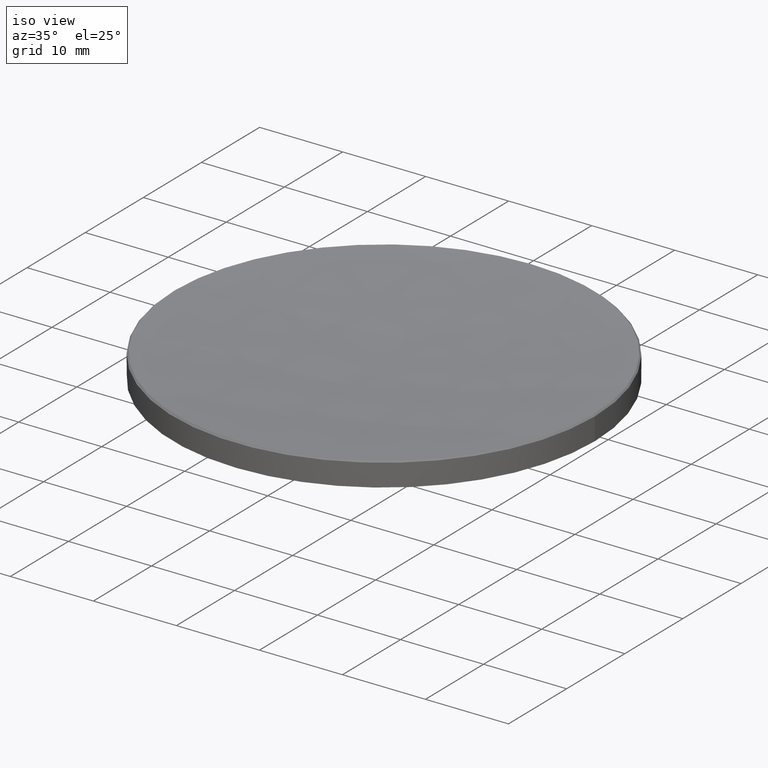
[diagram: clean part render]
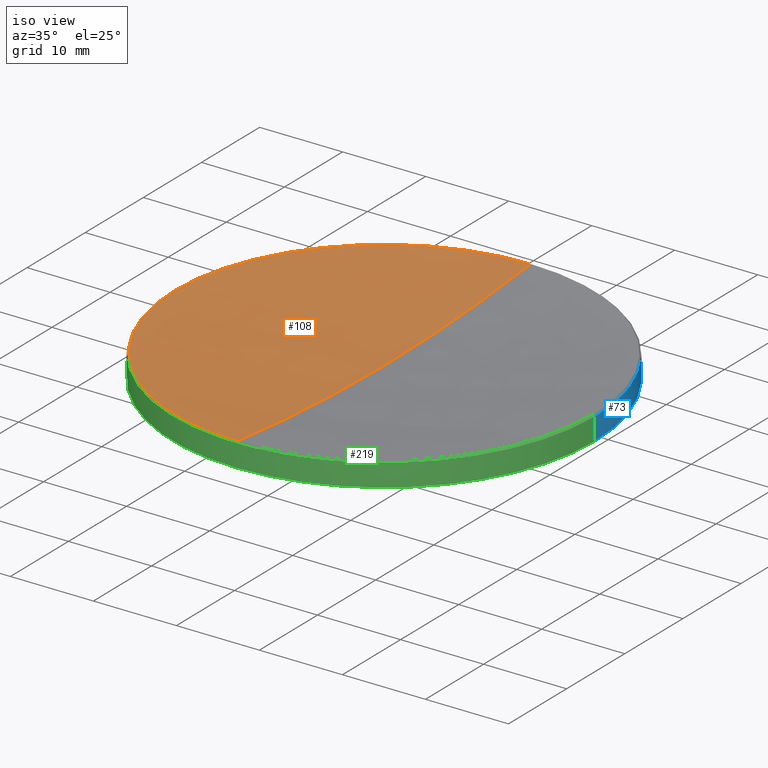
[diagram: same view with three faces highlighted in distinct colors, each labeled with its STEP entity id]
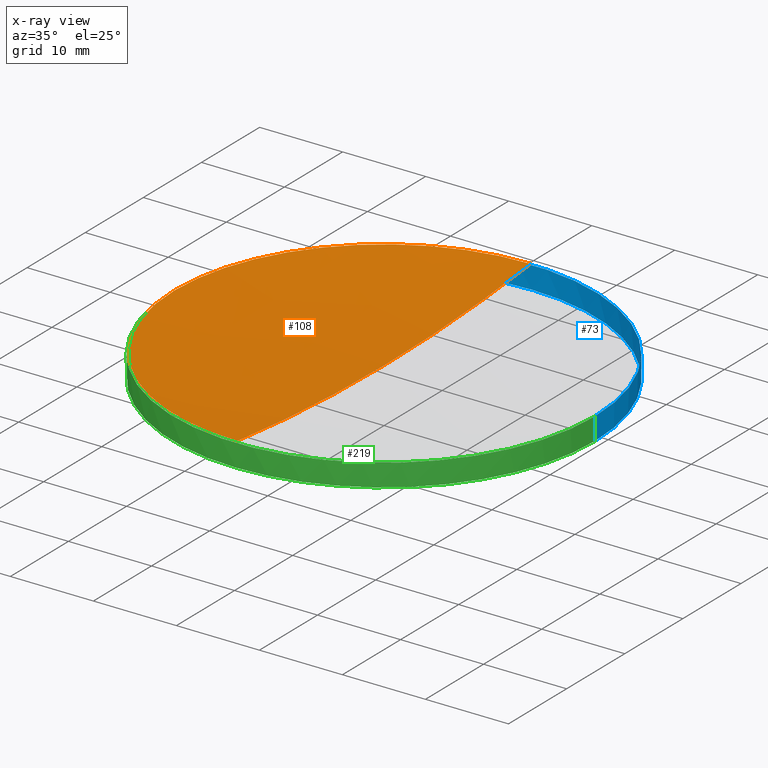
[diagram: x-ray of the same camera — body ghosted, the three highlighted faces saturated]
A machine part, iso view with three faces highlighted in distinct colors.
The next image is the same camera in x-ray (body ghosted, the three faces saturated) — at least one of them is partly hidden behind the body in this view.
Their STEP definitions:

[orange] entity #108 — the highlighted spherical surface has radius 224.67 mm.
#5 = CARTESIAN_POINT ( 'NONE',  ( 0.000000000000000000, 1.375706981822179092E-14, 14.45958786863357837 ) ) ;
#13 = CIRCLE ( 'NONE', #248, 25.22036627463847935 ) ;
#18 = DIRECTION ( 'NONE',  ( 1.000000000000000000, 0.000000000000000000, 0.000000000000000000 ) ) ;
#28 = FACE_OUTER_BOUND ( 'NONE', #196, .T. ) ;
#35 = VERTEX_POINT ( 'NONE', #274 ) ;
#40 = CARTESIAN_POINT ( 'NONE',  ( 0.000000000000000000, 0.000000000000000000, 15.87963372536149720 ) ) ;
#43 = VERTEX_POINT ( 'NONE', #173 ) ;
#44 = CIRCLE ( 'NONE', #210, 224.6699999999999875 ) ;
#48 = CARTESIAN_POINT ( 'NONE',  ( 0.000000000000000000, 0.000000000000000000, 239.1295878686335641 ) ) ;
#52 = AXIS2_PLACEMENT_3D ( 'NONE', #71, #202, #157 ) ;
#54 = DIRECTION ( 'NONE',  ( 1.000000000000000000, 0.000000000000000000, 0.000000000000000000 ) ) ;
#62 = VERTEX_POINT ( 'NONE', #151 ) ;
#64 = EDGE_CURVE ( 'NONE', #148, #35, #44, .T. ) ;
#71 = CARTESIAN_POINT ( 'NONE',  ( 0.000000000000000000, 0.000000000000000000, 239.1295878686335641 ) ) ;
#75 = CARTESIAN_POINT ( 'NONE',  ( 0.000000000000000000, 0.000000000000000000, 15.87963372536149720 ) ) ;
#80 = ORIENTED_EDGE ( 'NONE', *, *, #261, .T. ) ;
#90 = CARTESIAN_POINT ( 'NONE',  ( 0.000000000000000000, 0.000000000000000000, 239.1295878686335641 ) ) ;
#95 = AXIS2_PLACEMENT_3D ( 'NONE', #90, #249, #115 ) ;
#106 = ORIENTED_EDGE ( 'NONE', *, *, #246, .T. ) ;
#108 = ADVANCED_FACE ( 'NONE', ( #28 ), #199, .F. ) ;
#115 = DIRECTION ( 'NONE',  ( 0.000000000000000000, 1.000000000000000000, 0.000000000000000000 ) ) ;
#120 = CIRCLE ( 'NONE', #209, 25.22036627463847935 ) ;
#126 = DIRECTION ( 'NONE',  ( -0.000000000000000000, -0.000000000000000000, 1.000000000000000000 ) ) ;
#148 = VERTEX_POINT ( 'NONE', #5 ) ;
#151 = CARTESIAN_POINT ( 'NONE',  ( -25.22036627463847935, 0.000000000000000000, 15.87963372536149720 ) ) ;
#157 = DIRECTION ( 'NONE',  ( -1.224646799147353207E-16, -1.000000000000000000, 0.000000000000000000 ) ) ;
#173 = CARTESIAN_POINT ( 'NONE',  ( -3.088604083155972347E-15, -25.22036627463835501, 15.87963372536149720 ) ) ;
#176 = DIRECTION ( 'NONE',  ( 0.000000000000000000, 0.000000000000000000, -1.000000000000000000 ) ) ;
#195 = EDGE_CURVE ( 'NONE', #148, #43, #263, .T. ) ;
#196 = EDGE_LOOP ( 'NONE', ( #254, #255, #80, #106 ) ) ;
#199 = SPHERICAL_SURFACE ( 'NONE', #95, 224.6699999999999875 ) ;
#202 = DIRECTION ( 'NONE',  ( -1.000000000000000000, 1.224646799147353207E-16, 0.000000000000000000 ) ) ;
#209 = AXIS2_PLACEMENT_3D ( 'NONE', #75, #247, #54 ) ;
#210 = AXIS2_PLACEMENT_3D ( 'NONE', #48, #225, #176 ) ;
#225 = DIRECTION ( 'NONE',  ( 1.000000000000000000, 0.000000000000000000, 0.000000000000000000 ) ) ;
#246 = EDGE_CURVE ( 'NONE', #62, #43, #120, .T. ) ;
#247 = DIRECTION ( 'NONE',  ( -0.000000000000000000, -0.000000000000000000, 1.000000000000000000 ) ) ;
#248 = AXIS2_PLACEMENT_3D ( 'NONE', #40, #126, #18 ) ;
#249 = DIRECTION ( 'NONE',  ( -1.000000000000000000, 0.000000000000000000, 0.000000000000000000 ) ) ;
#254 = ORIENTED_EDGE ( 'NONE', *, *, #195, .F. ) ;
#255 = ORIENTED_EDGE ( 'NONE', *, *, #64, .T. ) ;
#261 = EDGE_CURVE ( 'NONE', #35, #62, #13, .T. ) ;
#263 = CIRCLE ( 'NONE', #52, 224.6699999999999875 ) ;
#274 = CARTESIAN_POINT ( 'NONE',  ( 0.000000000000000000, 25.22036627463835501, 15.87963372536149720 ) ) ;

[blue] entity #73 — the highlighted cylindrical surface (partial cylindrical patch) has radius 25.4 mm, axis along (-0, -0, -1).
#10 = VECTOR ( 'NONE', #69, 1000.000000000000000 ) ;
#16 = VERTEX_POINT ( 'NONE', #144 ) ;
#19 = CARTESIAN_POINT ( 'NONE',  ( 25.39999999999999503, 3.110602869834276471E-15, 13.00000000000000000 ) ) ;
#21 = ORIENTED_EDGE ( 'NONE', *, *, #42, .F. ) ;
#22 = EDGE_CURVE ( 'NONE', #98, #88, #192, .T. ) ;
#26 = VERTEX_POINT ( 'NONE', #19 ) ;
#29 = DIRECTION ( 'NONE',  ( 1.000000000000000000, 0.000000000000000000, 0.000000000000000000 ) ) ;
#30 = LINE ( 'NONE', #131, #72 ) ;
#42 = EDGE_CURVE ( 'NONE', #98, #16, #30, .T. ) ;
#45 = EDGE_CURVE ( 'NONE', #88, #26, #113, .T. ) ;
#57 = AXIS2_PLACEMENT_3D ( 'NONE', #244, #243, #201 ) ;
#61 = CIRCLE ( 'NONE', #166, 25.39999999999999503 ) ;
#67 = FACE_OUTER_BOUND ( 'NONE', #171, .T. ) ;
#69 = DIRECTION ( 'NONE',  ( -0.000000000000000000, -0.000000000000000000, -1.000000000000000000 ) ) ;
#72 = VECTOR ( 'NONE', #150, 1000.000000000000000 ) ;
#73 = ADVANCED_FACE ( 'NONE', ( #67 ), #92, .T. ) ;
#77 = ORIENTED_EDGE ( 'NONE', *, *, #229, .T. ) ;
#84 = DIRECTION ( 'NONE',  ( 1.000000000000000000, 0.000000000000000000, 0.000000000000000000 ) ) ;
#85 = CIRCLE ( 'NONE', #138, 25.39999999999999503 ) ;
#86 = ORIENTED_EDGE ( 'NONE', *, *, #251, .T. ) ;
#88 = VERTEX_POINT ( 'NONE', #257 ) ;
#92 = CYLINDRICAL_SURFACE ( 'NONE', #57, 25.39999999999999858 ) ;
#98 = VERTEX_POINT ( 'NONE', #228 ) ;
#105 = ORIENTED_EDGE ( 'NONE', *, *, #45, .T. ) ;
#113 = LINE ( 'NONE', #153, #10 ) ;
#124 = CARTESIAN_POINT ( 'NONE',  ( 0.000000000000000000, 0.000000000000000000, 15.69999999999996376 ) ) ;
#131 = CARTESIAN_POINT ( 'NONE',  ( -25.39999999999999858, 0.000000000000000000, 20.00000000000000000 ) ) ;
#138 = AXIS2_PLACEMENT_3D ( 'NONE', #156, #236, #143 ) ;
#143 = DIRECTION ( 'NONE',  ( 1.000000000000000000, 0.000000000000000000, 0.000000000000000000 ) ) ;
#144 = CARTESIAN_POINT ( 'NONE',  ( -25.39999999999999503, 0.000000000000000000, 13.00000000000000000 ) ) ;
#145 = VERTEX_POINT ( 'NONE', #181 ) ;
#150 = DIRECTION ( 'NONE',  ( -0.000000000000000000, -0.000000000000000000, -1.000000000000000000 ) ) ;
#153 = CARTESIAN_POINT ( 'NONE',  ( 25.39999999999999858, 3.110602869834276865E-15, 20.00000000000000000 ) ) ;
#156 = CARTESIAN_POINT ( 'NONE',  ( 0.000000000000000000, 0.000000000000000000, 13.00000000000000000 ) ) ;
#166 = AXIS2_PLACEMENT_3D ( 'NONE', #260, #250, #29 ) ;
#171 = EDGE_LOOP ( 'NONE', ( #218, #105, #86, #77, #21 ) ) ;
#181 = CARTESIAN_POINT ( 'NONE',  ( 0.000000000000000000, 25.39999999999999147, 12.99999999999999822 ) ) ;
#192 = CIRCLE ( 'NONE', #268, 25.39999999999999858 ) ;
#201 = DIRECTION ( 'NONE',  ( -1.000000000000000000, 0.000000000000000000, 0.000000000000000000 ) ) ;
#216 = DIRECTION ( 'NONE',  ( 0.000000000000000000, 0.000000000000000000, -1.000000000000000000 ) ) ;
#218 = ORIENTED_EDGE ( 'NONE', *, *, #22, .T. ) ;
#228 = CARTESIAN_POINT ( 'NONE',  ( -25.39999999999999858, 0.000000000000000000, 15.69999999999996376 ) ) ;
#229 = EDGE_CURVE ( 'NONE', #145, #16, #61, .T. ) ;
#236 = DIRECTION ( 'NONE',  ( -0.000000000000000000, -0.000000000000000000, 1.000000000000000000 ) ) ;
#243 = DIRECTION ( 'NONE',  ( -0.000000000000000000, -0.000000000000000000, -1.000000000000000000 ) ) ;
#244 = CARTESIAN_POINT ( 'NONE',  ( 0.000000000000000000, 0.000000000000000000, 20.00000000000000000 ) ) ;
#250 = DIRECTION ( 'NONE',  ( -0.000000000000000000, -0.000000000000000000, 1.000000000000000000 ) ) ;
#251 = EDGE_CURVE ( 'NONE', #26, #145, #85, .T. ) ;
#257 = CARTESIAN_POINT ( 'NONE',  ( 25.39999999999999858, 3.110602869834276865E-15, 15.69999999999996376 ) ) ;
#260 = CARTESIAN_POINT ( 'NONE',  ( 0.000000000000000000, 0.000000000000000000, 13.00000000000000000 ) ) ;
#268 = AXIS2_PLACEMENT_3D ( 'NONE', #124, #216, #84 ) ;

[green] entity #219 — the highlighted cylindrical surface (partial cylindrical patch) has radius 25.4 mm, axis along (-0, -0, -1).
#7 = FACE_OUTER_BOUND ( 'NONE', #256, .T. ) ;
#10 = VECTOR ( 'NONE', #69, 1000.000000000000000 ) ;
#12 = AXIS2_PLACEMENT_3D ( 'NONE', #33, #117, #119 ) ;
#16 = VERTEX_POINT ( 'NONE', #144 ) ;
#19 = CARTESIAN_POINT ( 'NONE',  ( 25.39999999999999503, 3.110602869834276471E-15, 13.00000000000000000 ) ) ;
#24 = AXIS2_PLACEMENT_3D ( 'NONE', #51, #224, #96 ) ;
#26 = VERTEX_POINT ( 'NONE', #19 ) ;
#30 = LINE ( 'NONE', #131, #72 ) ;
#32 = DIRECTION ( 'NONE',  ( -0.000000000000000000, -0.000000000000000000, 1.000000000000000000 ) ) ;
#33 = CARTESIAN_POINT ( 'NONE',  ( 0.000000000000000000, 0.000000000000000000, 13.00000000000000000 ) ) ;
#41 = ORIENTED_EDGE ( 'NONE', *, *, #101, .T. ) ;
#42 = EDGE_CURVE ( 'NONE', #98, #16, #30, .T. ) ;
#45 = EDGE_CURVE ( 'NONE', #88, #26, #113, .T. ) ;
#51 = CARTESIAN_POINT ( 'NONE',  ( 0.000000000000000000, 0.000000000000000000, 20.00000000000000000 ) ) ;
#59 = ORIENTED_EDGE ( 'NONE', *, *, #42, .T. ) ;
#69 = DIRECTION ( 'NONE',  ( -0.000000000000000000, -0.000000000000000000, -1.000000000000000000 ) ) ;
#72 = VECTOR ( 'NONE', #150, 1000.000000000000000 ) ;
#78 = AXIS2_PLACEMENT_3D ( 'NONE', #180, #97, #114 ) ;
#88 = VERTEX_POINT ( 'NONE', #257 ) ;
#96 = DIRECTION ( 'NONE',  ( -1.000000000000000000, 0.000000000000000000, 0.000000000000000000 ) ) ;
#97 = DIRECTION ( 'NONE',  ( 0.000000000000000000, 0.000000000000000000, -1.000000000000000000 ) ) ;
#98 = VERTEX_POINT ( 'NONE', #228 ) ;
#101 = EDGE_CURVE ( 'NONE', #16, #266, #281, .T. ) ;
#113 = LINE ( 'NONE', #153, #10 ) ;
#114 = DIRECTION ( 'NONE',  ( 1.000000000000000000, 0.000000000000000000, 0.000000000000000000 ) ) ;
#117 = DIRECTION ( 'NONE',  ( -0.000000000000000000, -0.000000000000000000, 1.000000000000000000 ) ) ;
#119 = DIRECTION ( 'NONE',  ( 1.000000000000000000, 0.000000000000000000, 0.000000000000000000 ) ) ;
#130 = CARTESIAN_POINT ( 'NONE',  ( 0.000000000000000000, 0.000000000000000000, 13.00000000000000000 ) ) ;
#131 = CARTESIAN_POINT ( 'NONE',  ( -25.39999999999999858, 0.000000000000000000, 20.00000000000000000 ) ) ;
#144 = CARTESIAN_POINT ( 'NONE',  ( -25.39999999999999503, 0.000000000000000000, 13.00000000000000000 ) ) ;
#150 = DIRECTION ( 'NONE',  ( -0.000000000000000000, -0.000000000000000000, -1.000000000000000000 ) ) ;
#153 = CARTESIAN_POINT ( 'NONE',  ( 25.39999999999999858, 3.110602869834276865E-15, 20.00000000000000000 ) ) ;
#158 = AXIS2_PLACEMENT_3D ( 'NONE', #130, #32, #282 ) ;
#159 = EDGE_CURVE ( 'NONE', #88, #98, #227, .T. ) ;
#163 = ORIENTED_EDGE ( 'NONE', *, *, #45, .F. ) ;
#177 = CYLINDRICAL_SURFACE ( 'NONE', #24, 25.39999999999999858 ) ;
#180 = CARTESIAN_POINT ( 'NONE',  ( 0.000000000000000000, 0.000000000000000000, 15.69999999999996376 ) ) ;
#183 = ORIENTED_EDGE ( 'NONE', *, *, #206, .T. ) ;
#194 = CIRCLE ( 'NONE', #12, 25.39999999999999503 ) ;
#206 = EDGE_CURVE ( 'NONE', #266, #26, #194, .T. ) ;
#217 = CARTESIAN_POINT ( 'NONE',  ( -3.110602869834276076E-15, -25.39999999999999147, 12.99999999999999822 ) ) ;
#219 = ADVANCED_FACE ( 'NONE', ( #7 ), #177, .T. ) ;
#224 = DIRECTION ( 'NONE',  ( -0.000000000000000000, -0.000000000000000000, -1.000000000000000000 ) ) ;
#227 = CIRCLE ( 'NONE', #78, 25.39999999999999858 ) ;
#228 = CARTESIAN_POINT ( 'NONE',  ( -25.39999999999999858, 0.000000000000000000, 15.69999999999996376 ) ) ;
#256 = EDGE_LOOP ( 'NONE', ( #163, #275, #59, #41, #183 ) ) ;
#257 = CARTESIAN_POINT ( 'NONE',  ( 25.39999999999999858, 3.110602869834276865E-15, 15.69999999999996376 ) ) ;
#266 = VERTEX_POINT ( 'NONE', #217 ) ;
#275 = ORIENTED_EDGE ( 'NONE', *, *, #159, .T. ) ;
#281 = CIRCLE ( 'NONE', #158, 25.39999999999999503 ) ;
#282 = DIRECTION ( 'NONE',  ( 1.000000000000000000, 0.000000000000000000, 0.000000000000000000 ) ) ;